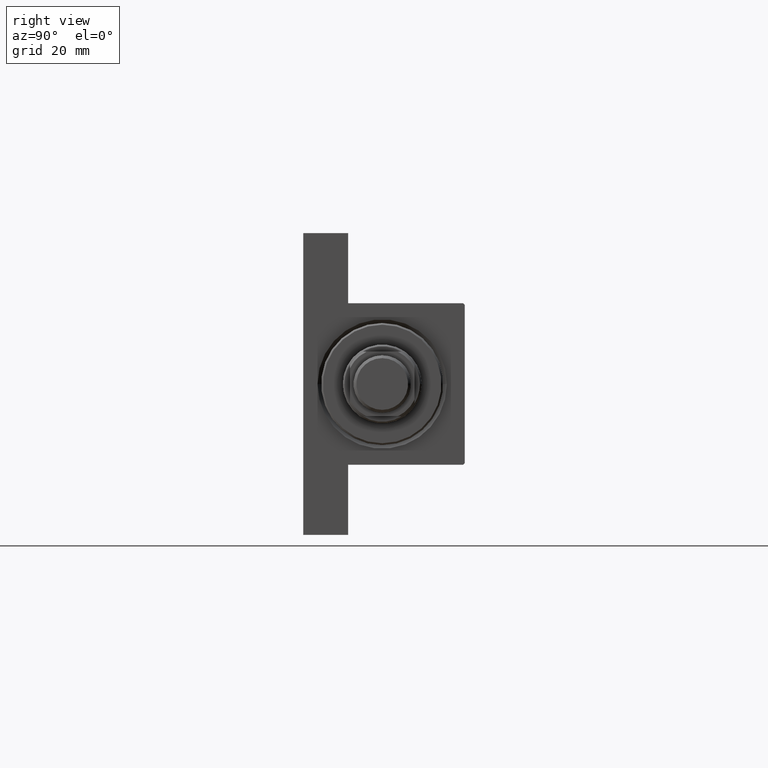
[diagram: clean part render]
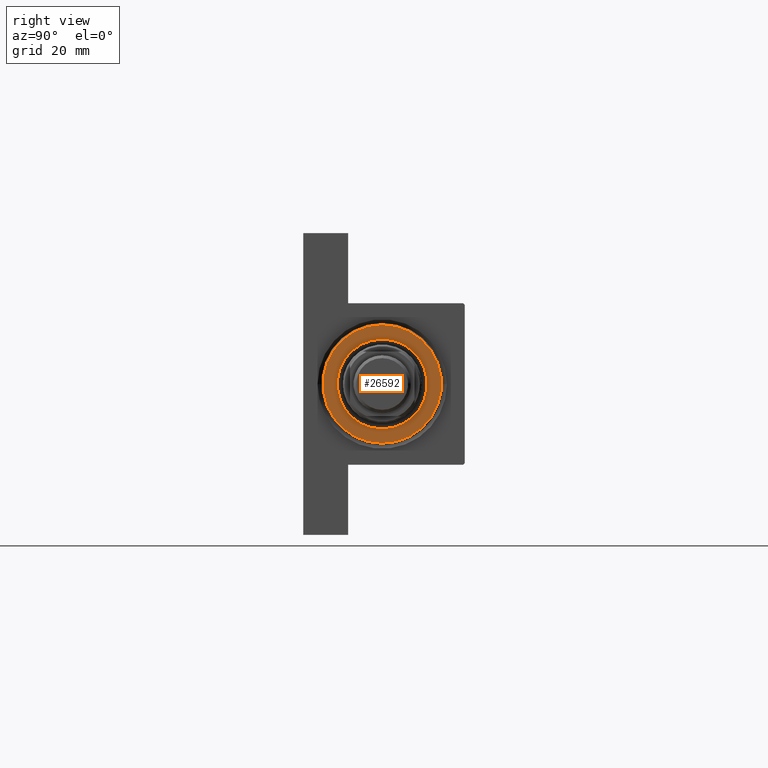
[diagram: same view with one face highlighted and labeled with its STEP entity id]
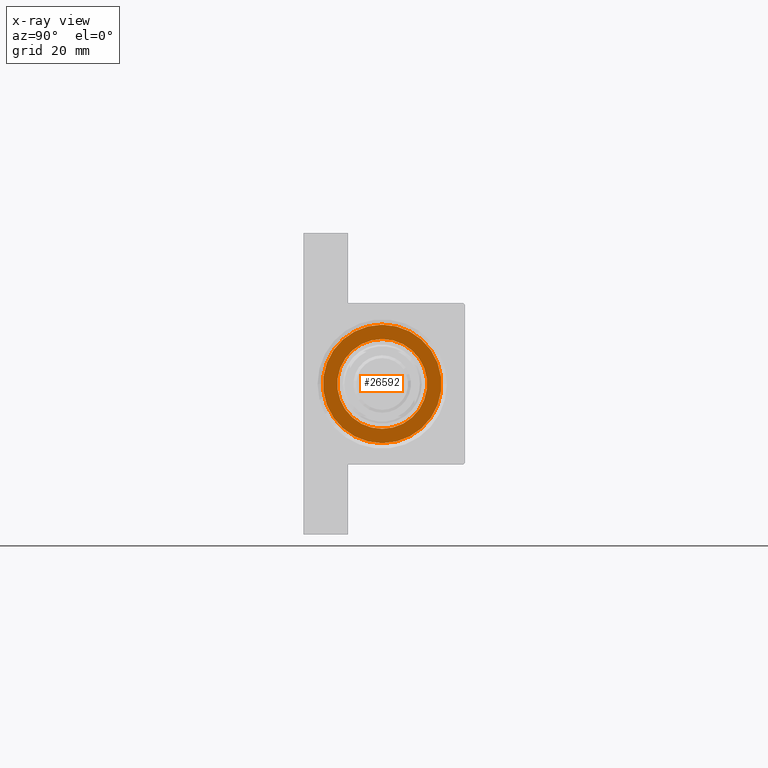
[diagram: x-ray of the same camera — body ghosted, the highlighted face saturated]
A machine part, right view. The second image highlights one B-rep face of the part: STEP entity #26592.
The next image is the same camera in x-ray: the body ghosted, the highlighted face saturated — about 0% of this face is hidden behind the body in this view.
In plain terms, the highlighted planar face has unit normal (1, 0, 0).
Its self-contained STEP definition (entity closure, byte-faithful):
#2081 = DIRECTION ( 'NONE',  ( 1.000000000000000000, 0.000000000000000000, 0.000000000000000000 ) ) ;
#2488 = CIRCLE ( 'NONE', #23416, 12.50000000000000000 ) ;
#3766 = AXIS2_PLACEMENT_3D ( 'NONE', #8347, #19257, #22919 ) ;
#3901 = CARTESIAN_POINT ( 'NONE',  ( -12.50000000000000000, 1.530808498934191521E-15, 40.70000000000000284 ) ) ;
#5616 = FACE_BOUND ( 'NONE', #12701, .T. ) ;
#7357 = DIRECTION ( 'NONE',  ( 1.000000000000000000, 0.000000000000000000, 0.000000000000000000 ) ) ;
#8347 = CARTESIAN_POINT ( 'NONE',  ( 0.000000000000000000, 0.000000000000000000, 40.70000000000000284 ) ) ;
#11980 = EDGE_CURVE ( 'NONE', #40616, #14861, #32569, .T. ) ;
#12701 = EDGE_LOOP ( 'NONE', ( #34359, #36556 ) ) ;
#14771 = AXIS2_PLACEMENT_3D ( 'NONE', #14875, #40613, #7357 ) ;
#14861 = VERTEX_POINT ( 'NONE', #19490 ) ;
#14875 = CARTESIAN_POINT ( 'NONE',  ( 0.000000000000000000, 0.000000000000000000, 40.70000000000000284 ) ) ;
#14944 = VERTEX_POINT ( 'NONE', #24338 ) ;
#15188 = FACE_OUTER_BOUND ( 'NONE', #29935, .T. ) ;
#16664 = AXIS2_PLACEMENT_3D ( 'NONE', #27694, #34741, #22688 ) ;
#19257 = DIRECTION ( 'NONE',  ( 0.000000000000000000, 0.000000000000000000, 1.000000000000000000 ) ) ;
#19490 = CARTESIAN_POINT ( 'NONE',  ( 12.50000000000000000, 0.000000000000000000, 40.70000000000000284 ) ) ;
#21437 = CARTESIAN_POINT ( 'NONE',  ( 0.000000000000000000, 0.000000000000000000, 40.70000000000000284 ) ) ;
#22688 = DIRECTION ( 'NONE',  ( 1.000000000000000000, 0.000000000000000000, -0.000000000000000000 ) ) ;
#22919 = DIRECTION ( 'NONE',  ( 1.000000000000000000, 0.000000000000000000, 0.000000000000000000 ) ) ;
#23416 = AXIS2_PLACEMENT_3D ( 'NONE', #25561, #28264, #32145 ) ;
#24338 = CARTESIAN_POINT ( 'NONE',  ( -16.49999999999999289, 0.000000000000000000, 40.70000000000000284 ) ) ;
#25561 = CARTESIAN_POINT ( 'NONE',  ( 0.000000000000000000, 0.000000000000000000, 40.70000000000000284 ) ) ;
#25763 = AXIS2_PLACEMENT_3D ( 'NONE', #21437, #35340, #2081 ) ;
#26592 = ADVANCED_FACE ( 'NONE', ( #5616, #15188 ), #38861, .T. ) ;
#27694 = CARTESIAN_POINT ( 'NONE',  ( 0.000000000000000000, 0.000000000000000000, 40.70000000000000284 ) ) ;
#28264 = DIRECTION ( 'NONE',  ( 0.000000000000000000, 0.000000000000000000, 1.000000000000000000 ) ) ;
#29935 = EDGE_LOOP ( 'NONE', ( #31779, #42998 ) ) ;
#31689 = CARTESIAN_POINT ( 'NONE',  ( 16.49999999999999289, 2.051283388571816493E-15, 40.70000000000000284 ) ) ;
#31779 = ORIENTED_EDGE ( 'NONE', *, *, #41592, .T. ) ;
#32145 = DIRECTION ( 'NONE',  ( 1.000000000000000000, 0.000000000000000000, 0.000000000000000000 ) ) ;
#32569 = CIRCLE ( 'NONE', #14771, 12.50000000000000000 ) ;
#34294 = CIRCLE ( 'NONE', #25763, 16.49999999999999289 ) ;
#34359 = ORIENTED_EDGE ( 'NONE', *, *, #40348, .F. ) ;
#34741 = DIRECTION ( 'NONE',  ( 0.000000000000000000, 0.000000000000000000, 1.000000000000000000 ) ) ;
#34812 = EDGE_CURVE ( 'NONE', #41534, #14944, #38611, .T. ) ;
#35340 = DIRECTION ( 'NONE',  ( 0.000000000000000000, 0.000000000000000000, 1.000000000000000000 ) ) ;
#36556 = ORIENTED_EDGE ( 'NONE', *, *, #11980, .F. ) ;
#38611 = CIRCLE ( 'NONE', #3766, 16.49999999999999289 ) ;
#38861 = PLANE ( 'NONE',  #16664 ) ;
#40348 = EDGE_CURVE ( 'NONE', #14861, #40616, #2488, .T. ) ;
#40613 = DIRECTION ( 'NONE',  ( 0.000000000000000000, 0.000000000000000000, 1.000000000000000000 ) ) ;
#40616 = VERTEX_POINT ( 'NONE', #3901 ) ;
#41534 = VERTEX_POINT ( 'NONE', #31689 ) ;
#41592 = EDGE_CURVE ( 'NONE', #14944, #41534, #34294, .T. ) ;
#42998 = ORIENTED_EDGE ( 'NONE', *, *, #34812, .T. ) ;